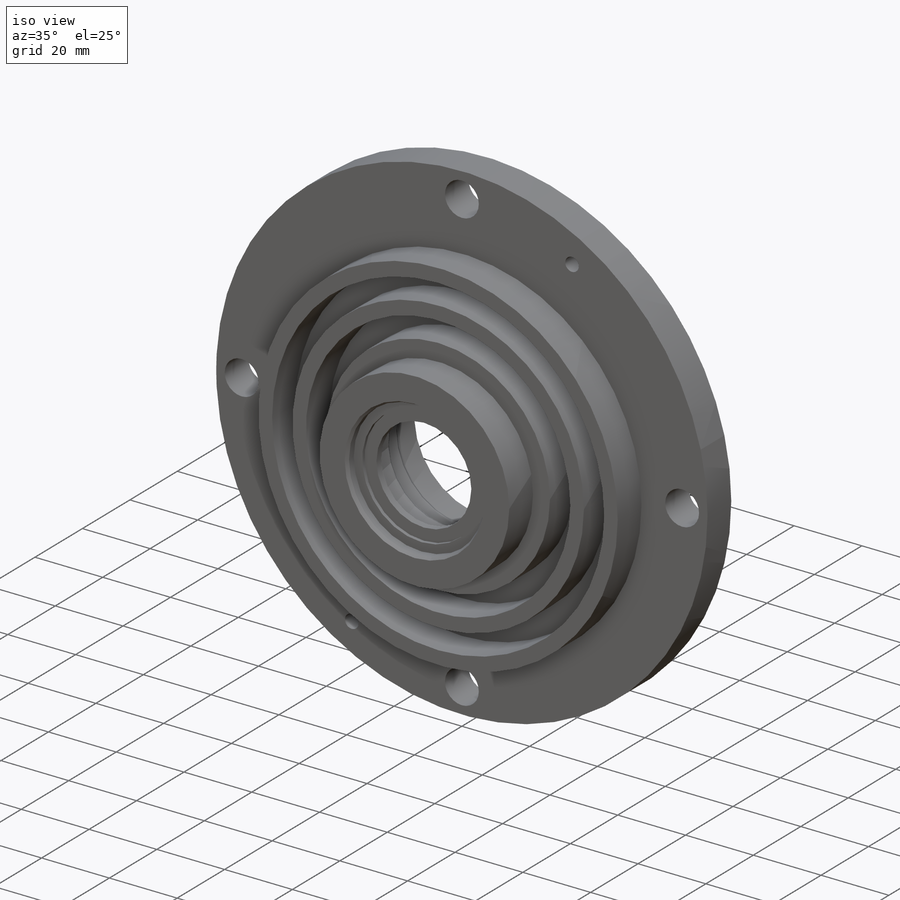
[diagram: iso view]
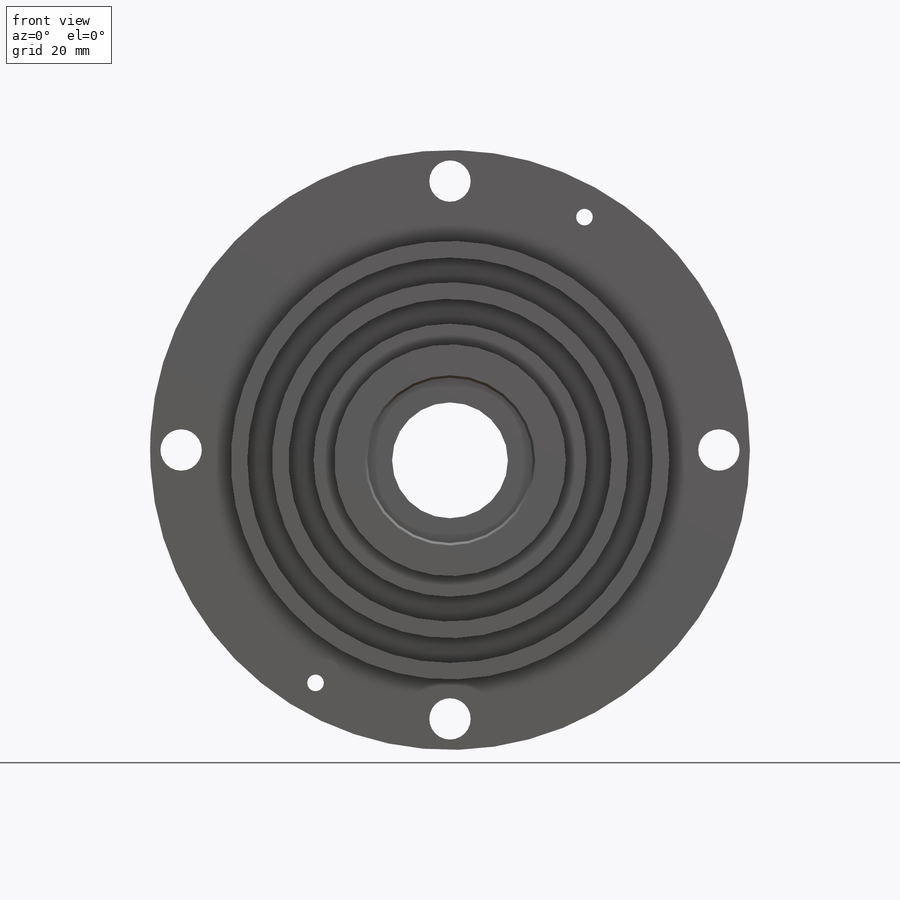
[diagram: front view]
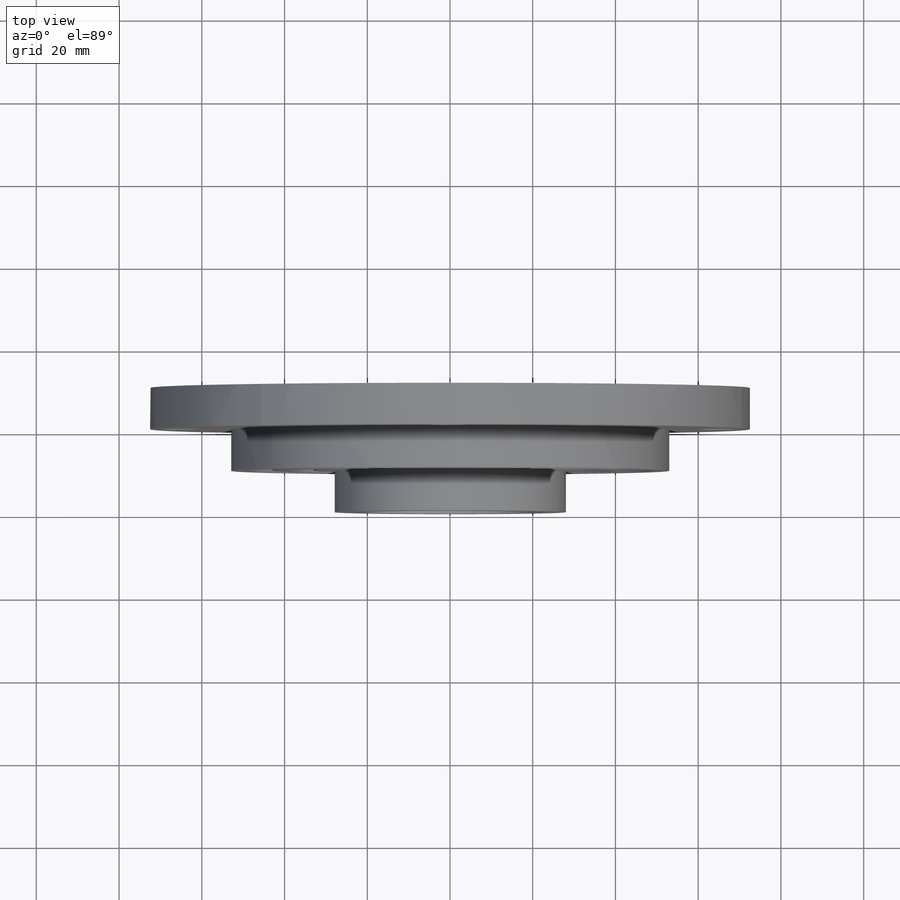
[diagram: top view]
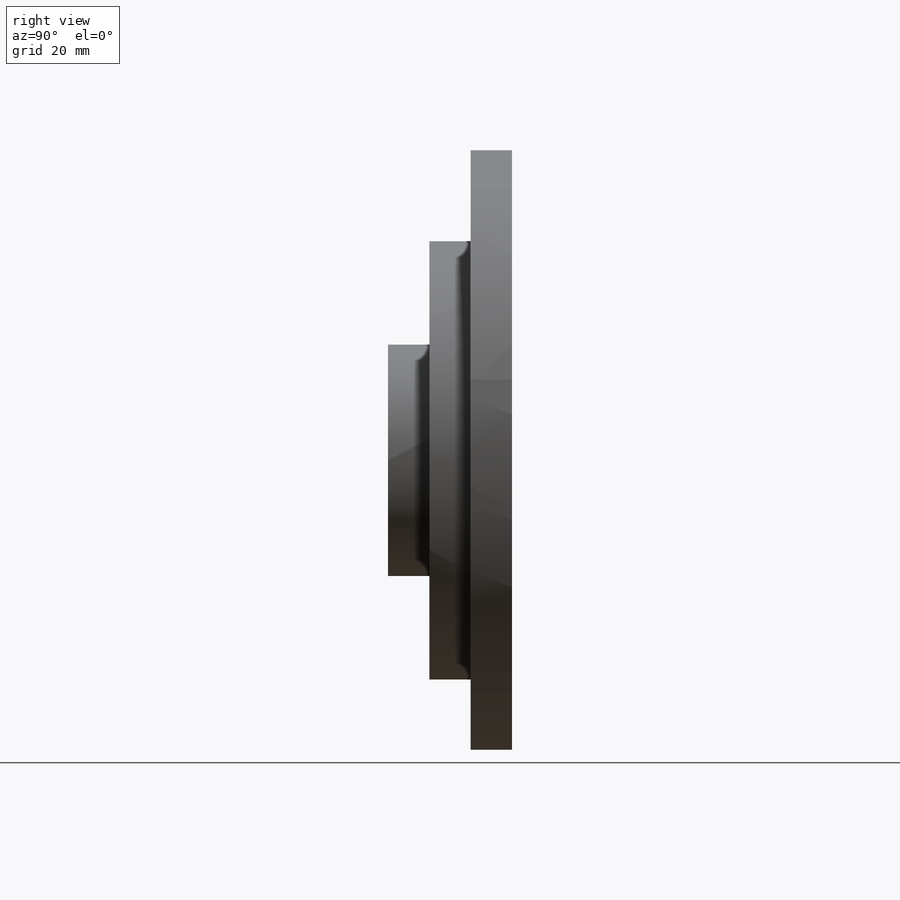
[diagram: right view]
SOLIDWORKS PART (.sldprt)
format: sldprt  version: not decoded by parser v0  size: 280,576 bytes
history: native  units: mm
features: plane x3, sketch x3, cut_revolve x2, material x1, extrude x1 (+12 scaffold rows collapsed)
feature tree (22):
  scaffold x12  (default folders/planes/origin — collapsed)
  material  "Matériau <non spécifié>"
  plane  "Plan de face"
  plane  "Plan de dessus"
  plane  "Plan de droite"
  sketch  "Esquisse1"  dims[c1.D5=21.0mm c1.D8=16.0mm c1.D9=195.0mm c2.D5=135.0mm c2.D19=4.0mm c2.D20=4.0mm c2.D21=135.0mm c2.D3=145.0mm c2.D4=10.0mm c3.D5=130.0mm c3.D1=70.0mm c3.D2=200.0mm c3.D3=140.0mm c4.D2=140.0mm c4.D4=70.0mm c4.D6=~90.577029mm c5.D6=37.0deg c5.D7=7.5mm c5.D10=55.0mm c5.D11=55.0mm c5.D12=55.0mm c5.D13=55.0mm c5.D14=55.0mm c5.D15=55.0mm c5.D16=55.0mm c5.D17=55.0mm c6.D6=~41.112639mm c7.D6=37.0deg c8.D6=37.1842mm c9.D6=~59.186737deg c10.D6=~72.591124mm c11.D6=30.0deg c11.D7=~60.666316mm c12.D7=30.0deg c12.D9=65.0mm c12.D18=65.0mm]
  extrude  "Extrusion1"  Depth=30mm
  sketch  "Esquisse2"  dims[c1.D1=40.0mm c1.D2=3.0mm c1.D3=34.0mm c1.D4=1.0mm c1.D5=17.1mm c1.D6=24.5mm c1.D7=3.7mm c1.D8=32.0mm c1.D9=2.0mm c1.D10=40.0mm c1.D11=7.0mm c1.D12=15.0mm c1.D13=42.0mm c1.D14=1.0mm c1.D15=30.0deg c1.D16=~0.997478mm c2.D16=30.0deg c2.D17=1.0mm c2.D18=5.0mm c2.D19=20.0mm c2.D3=17.5mm c2.D5=14.0mm c2.D6=17.5mm c2.D8=17.0mm c2.D10=20.0mm c2.D13=21.0mm c2.D7=9.0mm c3.D8=1.0mm c3.D9=30.0deg]
  cut_revolve  "Enlèvement de matière-Révolution1"  Angle=360deg
  sketch  "Esquisse3"  dims[D1=2.5mm D2=33.0mm D3=6.0mm D4=4.0mm D5=4.0mm D6=10.0mm D7=10.0mm D8=10.0mm D9=28.0mm]
  cut_revolve  "Enlèvement de matière-Révolution2"  Angle=360deg
decode coverage: 6 of 6 modeling features carry decoded parameters
note: ~ marks probable driven/reference dimensions
note: suppression state not decoded; provenance and decode notes live in map.json
